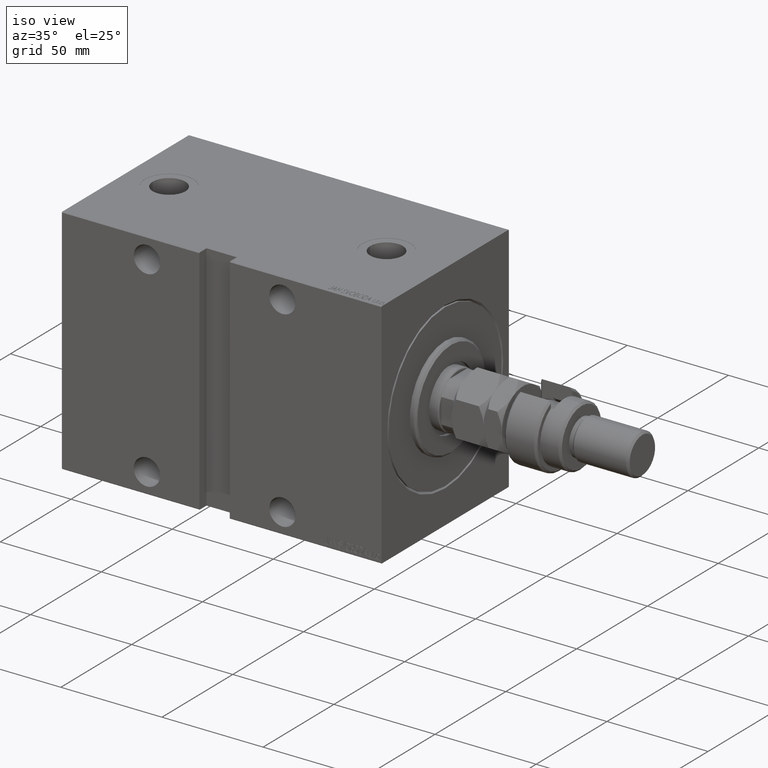
[diagram: clean part render]
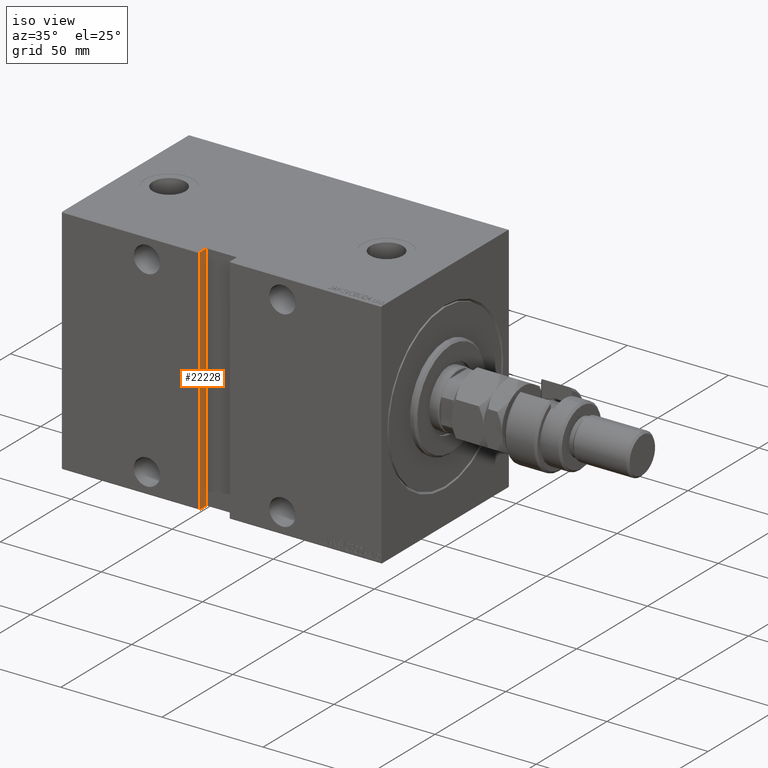
[diagram: same view with one face highlighted and labeled with its STEP entity id]
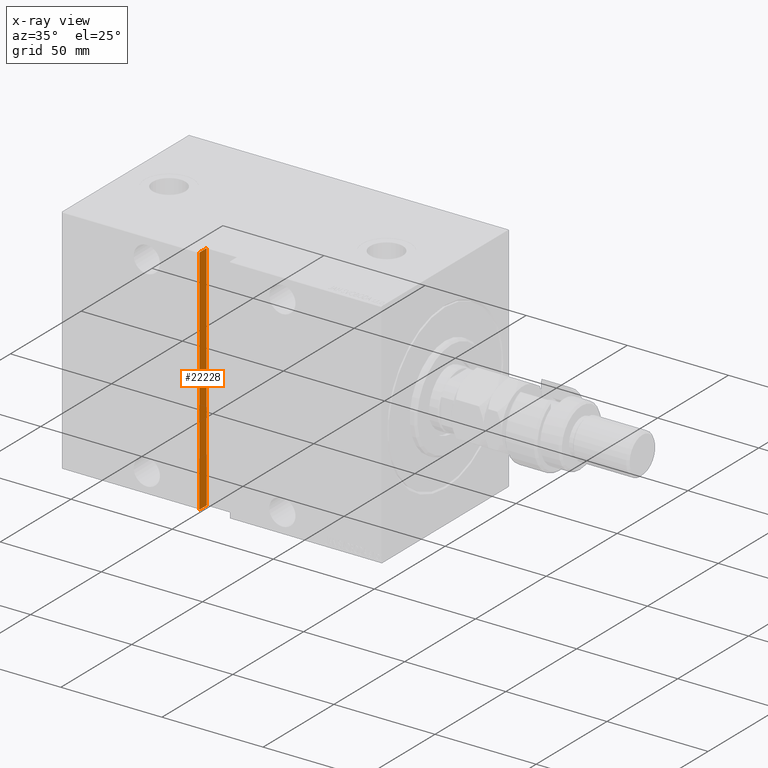
[diagram: x-ray of the same camera — body ghosted, the highlighted face saturated]
A machine part, iso view. The second image highlights one B-rep face of the part: STEP entity #22228.
The next image is the same camera in x-ray: the body ghosted, the highlighted face saturated — about 0% of this face is hidden behind the body in this view.
In plain terms, the highlighted planar face has unit normal (-1, 0, 0).
Its self-contained STEP definition (entity closure, byte-faithful):
#453 = EDGE_CURVE ( 'NONE', #33376, #3167, #25395, .T. ) ;
#539 = CARTESIAN_POINT ( 'NONE',  ( 89.99999999999998579, 40.00000000000002132, -57.50000000000012079 ) ) ;
#1675 = DIRECTION ( 'NONE',  ( -0.000000000000000000, 1.000000000000000000, 1.261617073437677752E-16 ) ) ;
#3167 = VERTEX_POINT ( 'NONE', #8435 ) ;
#3762 = DIRECTION ( 'NONE',  ( 8.533111188498866291E-17, 0.7071067811865393571, -0.7071067811865556774 ) ) ;
#4085 = AXIS2_PLACEMENT_3D ( 'NONE', #539, #11286, #47094 ) ;
#4472 = LINE ( 'NONE', #40289, #18592 ) ;
#4642 = VECTOR ( 'NONE', #31867, 1000.000000000000000 ) ;
#5252 = CARTESIAN_POINT ( 'NONE',  ( 89.99999999999997158, 40.00000000000000711, 57.50000000000002132 ) ) ;
#6517 = LINE ( 'NONE', #15939, #41415 ) ;
#6587 = ORIENTED_EDGE ( 'NONE', *, *, #42373, .F. ) ;
#7426 = CARTESIAN_POINT ( 'NONE',  ( 89.99999999999998579, 40.00000000000002132, -57.50000000000012079 ) ) ;
#8435 = CARTESIAN_POINT ( 'NONE',  ( 89.99999999999998579, 45.00000000000002132, -57.20000000000004547 ) ) ;
#9049 = CARTESIAN_POINT ( 'NONE',  ( 89.99999999999997158, 45.00000000000000711, 57.20000000000001705 ) ) ;
#10700 = ORIENTED_EDGE ( 'NONE', *, *, #11554, .T. ) ;
#10702 = CARTESIAN_POINT ( 'NONE',  ( 89.99999999999998579, 40.00000000000002132, -57.50000000000012079 ) ) ;
#11286 = DIRECTION ( 'NONE',  ( 1.000000000000000000, -1.522474264337733631E-32, 1.206764157201255566E-16 ) ) ;
#11554 = EDGE_CURVE ( 'NONE', #3167, #43626, #6517, .T. ) ;
#12223 = VECTOR ( 'NONE', #40058, 1000.000000000000000 ) ;
#12678 = VECTOR ( 'NONE', #43948, 1000.000000000000000 ) ;
#15939 = CARTESIAN_POINT ( 'NONE',  ( 89.99999999999998579, 45.00000000000000711, -57.20000000000005258 ) ) ;
#16619 = ORIENTED_EDGE ( 'NONE', *, *, #40773, .T. ) ;
#17650 = LINE ( 'NONE', #10702, #12223 ) ;
#18592 = VECTOR ( 'NONE', #3762, 1000.000000000000000 ) ;
#22228 = ADVANCED_FACE ( 'NONE', ( #33251 ), #43983, .F. ) ;
#22523 = EDGE_CURVE ( 'NONE', #46714, #33376, #4472, .T. ) ;
#22634 = ORIENTED_EDGE ( 'NONE', *, *, #22523, .T. ) ;
#24285 = CARTESIAN_POINT ( 'NONE',  ( 89.99999999999997158, 44.70000000000001705, 57.50000000000002132 ) ) ;
#25395 = LINE ( 'NONE', #43517, #4642 ) ;
#26397 = CARTESIAN_POINT ( 'NONE',  ( 89.99999999999998579, 40.00000000000002132, -57.50000000000000711 ) ) ;
#26784 = ORIENTED_EDGE ( 'NONE', *, *, #27166, .F. ) ;
#26925 = CARTESIAN_POINT ( 'NONE',  ( 89.99999999999997158, 40.00000000000000711, 57.50000000000002132 ) ) ;
#27166 = EDGE_CURVE ( 'NONE', #34234, #43626, #36800, .T. ) ;
#31867 = DIRECTION ( 'NONE',  ( 1.206764157201255566E-16, 1.206764157201255566E-16, -1.000000000000000000 ) ) ;
#32267 = EDGE_LOOP ( 'NONE', ( #36650, #10700, #26784, #6587, #16619, #22634 ) ) ;
#33251 = FACE_OUTER_BOUND ( 'NONE', #32267, .T. ) ;
#33376 = VERTEX_POINT ( 'NONE', #9049 ) ;
#34234 = VERTEX_POINT ( 'NONE', #26397 ) ;
#36650 = ORIENTED_EDGE ( 'NONE', *, *, #453, .T. ) ;
#36800 = LINE ( 'NONE', #7426, #12678 ) ;
#37967 = LINE ( 'NONE', #5252, #39602 ) ;
#38987 = DIRECTION ( 'NONE',  ( 8.533111188498765218E-17, -0.7071067811865474617, -0.7071067811865474617 ) ) ;
#39602 = VECTOR ( 'NONE', #1675, 1000.000000000000000 ) ;
#40058 = DIRECTION ( 'NONE',  ( 1.206764157201255566E-16, 1.206764157201255566E-16, -1.000000000000000000 ) ) ;
#40289 = CARTESIAN_POINT ( 'NONE',  ( 89.99999999999997158, 44.70000000000002416, 57.50000000000000711 ) ) ;
#40773 = EDGE_CURVE ( 'NONE', #44269, #46714, #37967, .T. ) ;
#41415 = VECTOR ( 'NONE', #38987, 1000.000000000000114 ) ;
#42373 = EDGE_CURVE ( 'NONE', #44269, #34234, #17650, .T. ) ;
#43352 = CARTESIAN_POINT ( 'NONE',  ( 89.99999999999998579, 44.70000000000004547, -57.50000000000012079 ) ) ;
#43517 = CARTESIAN_POINT ( 'NONE',  ( 89.99999999999998579, 45.00000000000002132, -57.50000000000012079 ) ) ;
#43626 = VERTEX_POINT ( 'NONE', #43352 ) ;
#43948 = DIRECTION ( 'NONE',  ( -0.000000000000000000, 1.000000000000000000, 1.261617073437677752E-16 ) ) ;
#43983 = PLANE ( 'NONE',  #4085 ) ;
#44269 = VERTEX_POINT ( 'NONE', #26925 ) ;
#46714 = VERTEX_POINT ( 'NONE', #24285 ) ;
#47094 = DIRECTION ( 'NONE',  ( 1.206764157201255566E-16, 0.000000000000000000, -1.000000000000000000 ) ) ;